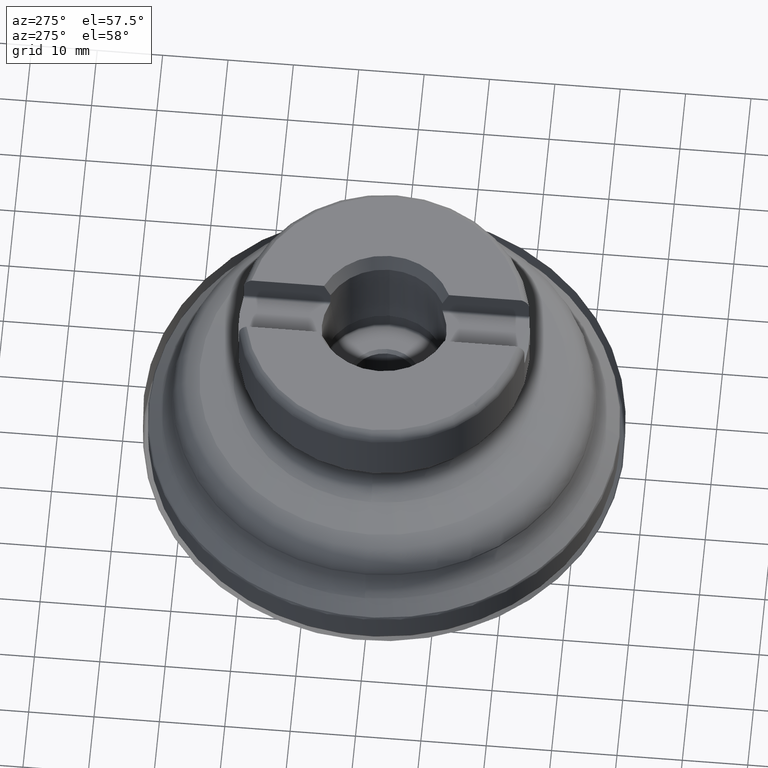
[diagram: clean part render]
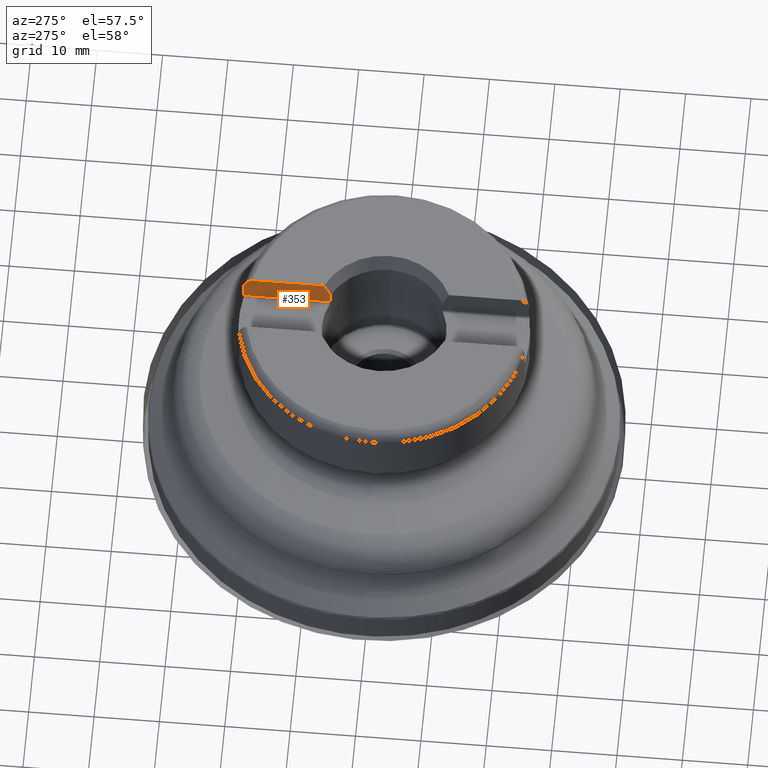
[diagram: same view with one face highlighted and labeled with its STEP entity id]
A machine part, auxiliary view. The second image highlights one B-rep face of the part: STEP entity #353.
In plain terms, the highlighted planar face has unit normal (-1, 0, 0).
Its self-contained STEP definition (entity closure, byte-faithful):
#283=PLANE('',#1035);
#301=LINE('',#1562,#329);
#302=LINE('',#1563,#330);
#303=LINE('',#1565,#331);
#304=LINE('',#1567,#332);
#329=VECTOR('',#1146,1.);
#330=VECTOR('',#1147,1.);
#331=VECTOR('',#1148,1.);
#332=VECTOR('',#1149,1.);
#353=ADVANCED_FACE('',(#430),#283,.T.);
#430=FACE_OUTER_BOUND('',#446,.T.);
#446=EDGE_LOOP('',(#629,#630,#631,#632,#633,#634));
#629=ORIENTED_EDGE('',*,*,#899,.F.);
#630=ORIENTED_EDGE('',*,*,#900,.T.);
#631=ORIENTED_EDGE('',*,*,#885,.F.);
#632=ORIENTED_EDGE('',*,*,#901,.T.);
#633=ORIENTED_EDGE('',*,*,#902,.T.);
#634=ORIENTED_EDGE('',*,*,#903,.F.);
#805=VERTEX_POINT('',#1510);
#806=VERTEX_POINT('',#1511);
#817=VERTEX_POINT('',#1560);
#818=VERTEX_POINT('',#1561);
#819=VERTEX_POINT('',#1564);
#820=VERTEX_POINT('',#1566);
#885=EDGE_CURVE('',#805,#806,#995,.T.);
#899=EDGE_CURVE('',#817,#818,#999,.T.);
#900=EDGE_CURVE('',#817,#806,#301,.T.);
#901=EDGE_CURVE('',#805,#819,#302,.T.);
#902=EDGE_CURVE('',#819,#820,#303,.T.);
#903=EDGE_CURVE('',#818,#820,#304,.T.);
#995=B_SPLINE_CURVE_WITH_KNOTS('',3,(#1494,#1495,#1496,#1497,#1498,#1499,
#1500,#1501,#1502,#1503,#1504,#1505,#1506,#1507,#1508,#1509),
 .UNSPECIFIED.,.F.,.F.,(4,3,3,3,3,4),(0.,0.0761677647757796,0.253024336168276,
0.551824724728706,0.850385091260074,1.),.UNSPECIFIED.);
#999=B_SPLINE_CURVE_WITH_KNOTS('',3,(#1556,#1557,#1558,#1559),
 .UNSPECIFIED.,.F.,.F.,(4,4),(0.,1.),.UNSPECIFIED.);
#1035=AXIS2_PLACEMENT_3D('',#1568,#1150,#1151);
#1146=DIRECTION('',(3.16413562018169E-15,1.,-1.33226762955019E-15));
#1147=DIRECTION('',(-1.17145536458253E-15,-1.33226762955019E-15,-1.));
#1148=DIRECTION('',(-3.16413562018169E-15,-1.,1.33226762955019E-15));
#1149=DIRECTION('',(-1.17145536458253E-15,-1.33226762955019E-15,-1.));
#1150=DIRECTION('',(-1.,3.1641356201817E-15,8.00889014200814E-16));
#1151=DIRECTION('',(-8.00574884163296E-16,-1.33226762955019E-15,-1.));
#1494=CARTESIAN_POINT('',(4.17500000000012,21.8293380568461,38.2000000000002));
#1495=CARTESIAN_POINT('',(4.17500000000012,21.8293380568461,38.2573212061213));
#1496=CARTESIAN_POINT('',(4.17500000000012,21.8268241393793,38.3146972082169));
#1497=CARTESIAN_POINT('',(4.17500000000012,21.8218116509468,38.3717988336833));
#1498=CARTESIAN_POINT('',(4.17500000000012,21.8101572817866,38.5045639127025));
#1499=CARTESIAN_POINT('',(4.17500000000012,21.7847934178436,38.6368078734822));
#1500=CARTESIAN_POINT('',(4.17500000000012,21.7465470159614,38.7644777731084));
#1501=CARTESIAN_POINT('',(4.17500000000012,21.6825348309505,38.9781561541585));
#1502=CARTESIAN_POINT('',(4.17500000000012,21.5803406037298,39.1835893960502));
#1503=CARTESIAN_POINT('',(4.17500000000012,21.4489413284662,39.363839890691));
#1504=CARTESIAN_POINT('',(4.17500000000012,21.3176034862072,39.5440061129532));
#1505=CARTESIAN_POINT('',(4.17500000000012,21.1535628995316,39.7039728234492));
#1506=CARTESIAN_POINT('',(4.17500000000012,20.9705375010683,39.8312960341015));
#1507=CARTESIAN_POINT('',(4.17500000000012,20.8784975391879,39.8953244342762));
#1508=CARTESIAN_POINT('',(4.17500000000012,20.7808287758401,39.9519151616087));
#1509=CARTESIAN_POINT('',(4.17500000000012,20.6795428492326,40.));
#1510=CARTESIAN_POINT('',(4.17500000000012,21.8293380568461,38.2000000000002));
#1511=CARTESIAN_POINT('',(4.17500000000012,20.6795428492326,40.));
#1556=CARTESIAN_POINT('',(4.17500000000008,9.56331778089474,40.));
#1557=CARTESIAN_POINT('',(4.17500000000008,9.23195148742314,39.1656242130155));
#1558=CARTESIAN_POINT('',(4.17500000000008,8.89821754837189,38.3321363964572));
#1559=CARTESIAN_POINT('',(4.17500000000008,8.56124990874583,37.5));
#1560=CARTESIAN_POINT('',(4.17500000000008,9.56331778089474,40.));
#1561=CARTESIAN_POINT('',(4.17500000000008,8.56124990874584,37.5));
#1562=CARTESIAN_POINT('',(4.1749999999999,-48.,40.0000000000001));
#1563=CARTESIAN_POINT('',(4.17500000000012,21.8293380568445,40.2));
#1564=CARTESIAN_POINT('',(4.17500000000012,21.8293380568445,35.65));
#1565=CARTESIAN_POINT('',(4.1749999999999,-48.,35.6500000000001));
#1566=CARTESIAN_POINT('',(4.17500000000008,8.56124990874583,35.65));
#1567=CARTESIAN_POINT('',(4.17500000000008,8.56124990874584,40.2));
#1568=CARTESIAN_POINT('',(4.1749999999999,-48.,35.2500000000001));